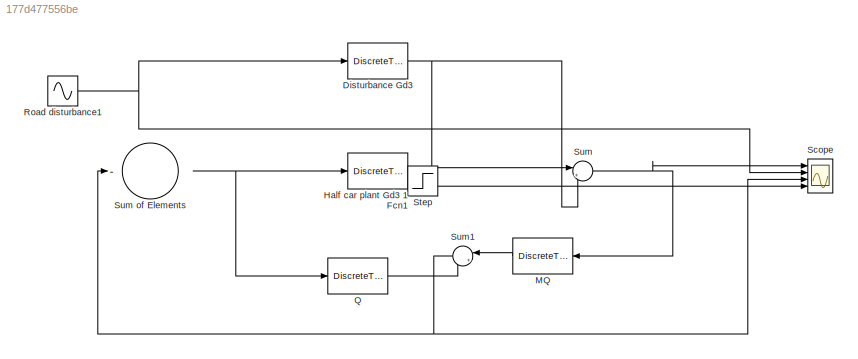
MODEL slx_177d477556be
KIND model
CONFIG AbsTol = auto
CONFIG FixedStep = auto
CONFIG MaxStep = auto
CONFIG MinStep = auto
CONFIG RelTol = 1e-3
CONFIG SampleTimeConstraint = Unconstrained
CONFIG Solver = VariableStepAuto
CONFIG SolverMode = Auto
CONFIG SolverName = VariableStepAuto
CONFIG StartTime = 0.0
CONFIG StopTime = 10
BLOCK [DiscreteTransferFcn] Disturbance Gd3
  Denominator = [1,-5.56300000000000,13.6494619999999,-19.2307473399999,16.8548157574011,-9.21660527305870,2.92363137823167,-0.417556522571862]
  InputPortMap = u0
  Numerator = [4.94538450000000,-16.1683393901000,18.4303307060006,-4.70382080898259,-7.34470352831246,6.39427693565206,-1.52013433786902,-0.0267173863676967]
  Ports = [1, 1]
  SampleTime = 0.01
  StateIdentifier = Gd1
BLOCK [DiscreteTransferFcn] Half car plant Gd3 1 Fcn1
  Denominator = [1,-5.56300000000000,13.6494619999999,-19.2307473399999,16.8548157574011,-9.21660527305870,2.92363137823167,-0.417556522571862]
  InputPortMap = u0
  Numerator = [4.94538450000000,-16.1683393901000,18.4303307060006,-4.70382080898259,-7.34470352831246,6.39427693565206,-1.52013433786902,-0.0267173863676967]
  Ports = [1, 1]
  SampleTime = 0.01
BLOCK [DiscreteTransferFcn] MQ
  Denominator = [60.9000000000000,-199.105220000000,226.960540681000,-57.9252608704228,-90.4464445331275,78.7424042319085,-18.7197135381940,-0.329011592484408,0]
  InputPortMap = u0
  Numerator = [0,12.3150000000000,-68.5083450000000,168.093124530000,-236.826653492100,207.567056052381,-113.502493937734,36.0045204229271,-5.14220857547418]
  Ports = [1, 1]
  SampleTime = 0.01
BLOCK [DiscreteTransferFcn] Q
  Denominator = [1,0]
  InputPortMap = u0
  Numerator = [0,1]
  Ports = [1, 1]
  SampleTime = 0.01
BLOCK [Sin] Road disturbance1
  Ports = [0, 1]
  SampleTime = 0
BLOCK [Scope] Scope
  NumInputPorts = 4
  Ports = [4]
  ScopeSpecificationString = Simulink.scopes.TimeScopeBlockCfg('CurrentConfiguration', extmgr.ConfigurationSet(extmgr.Configuration('Core','General UI',true,'FigureColor',[1 1 1]),extmgr.Configuration('Core','Source UI',true),extmgr.Configuration('Sources','WiredSimulink',true),extmgr.Configuration('Visuals','Time Domain',true,'TimeAxisLabels','All','SerializedDisplays',{struct('MinYLimReal','-6.72851','MaxYLimReal','6.72852'...<+5508ch>
BLOCK [Step] Step
  SampleTime = 0
BLOCK [Sum] Sum
  IconShape = round
  InputSameDT = off
  Inputs = |++
  OutDataTypeStr = Inherit: Inherit via internal rule
  Ports = [2, 1]
  SaturateOnIntegerOverflow = off
BLOCK [Sum] Sum of Elements
  InputSameDT = off
  Inputs = -
  OutDataTypeStr = Inherit: Inherit via internal rule
  Ports = [1, 1]
  SaturateOnIntegerOverflow = off
BLOCK [Sum] Sum1
  IconShape = round
  InputSameDT = off
  Inputs = |+-
  OutDataTypeStr = Inherit: Inherit via internal rule
  Ports = [2, 1]
  SaturateOnIntegerOverflow = off
NET Disturbance Gd3:1 -> Scope:4, Sum:2
LINE Half car plant Gd3 1 Fcn1:1 -> Sum:1
LINE MQ:1 -> Sum1:1
LINE Q:1 -> Sum1:2
NET Road disturbance1:1 -> Disturbance Gd3:1, Scope:2
NET Sum of Elements:1 -> Half car plant Gd3 1 Fcn1:1, Q:1
NET Sum1:1 -> Scope:3, Sum of Elements:1
NET Sum:1 -> MQ:1, Scope:1
note: NET lines group one-source signal fan-out (src -> all destinations, sorted); 1:1 wires keep LINE
